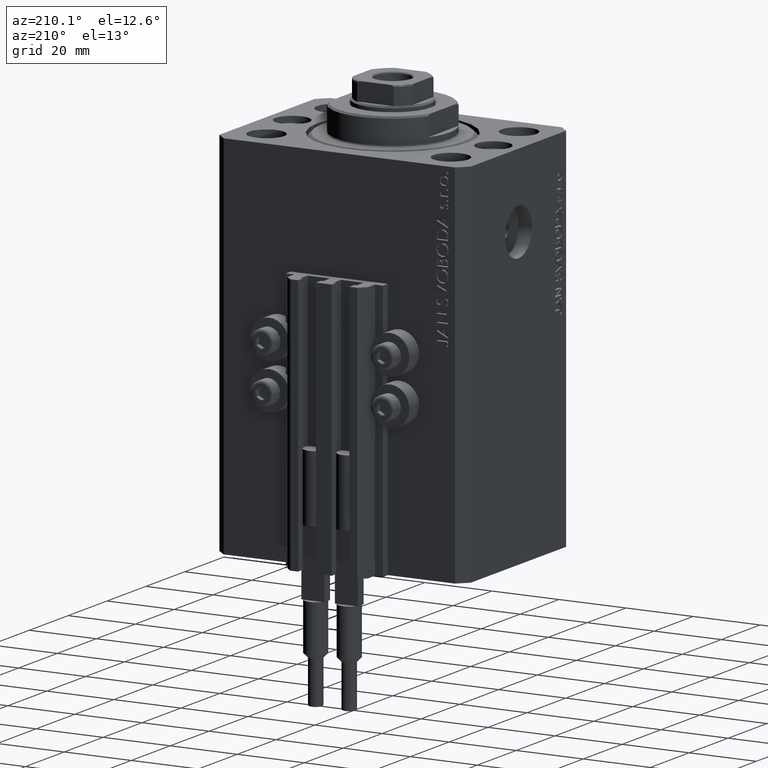
[diagram: clean part render]
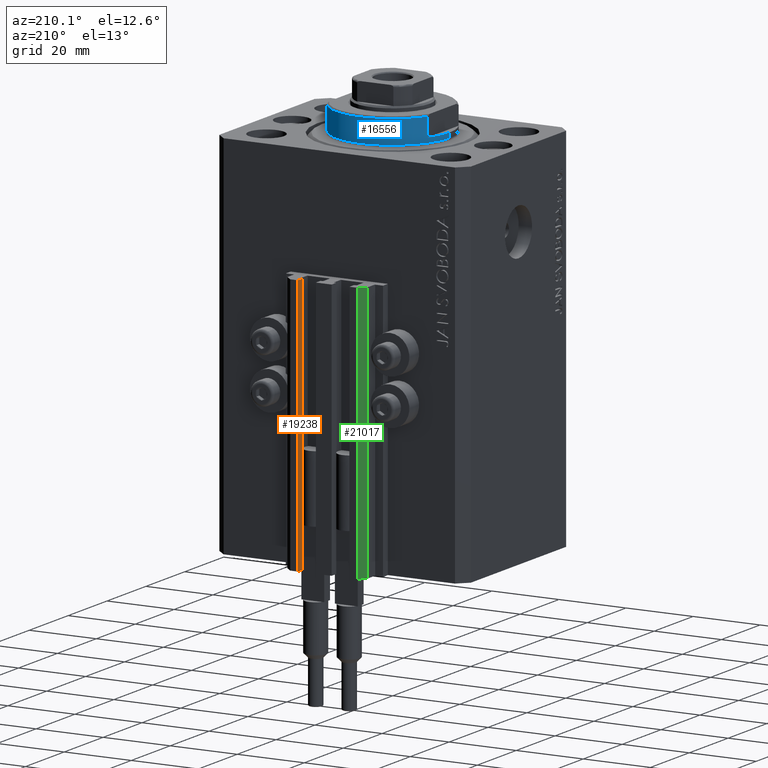
[diagram: same view with three faces highlighted in distinct colors, each labeled with its STEP entity id]
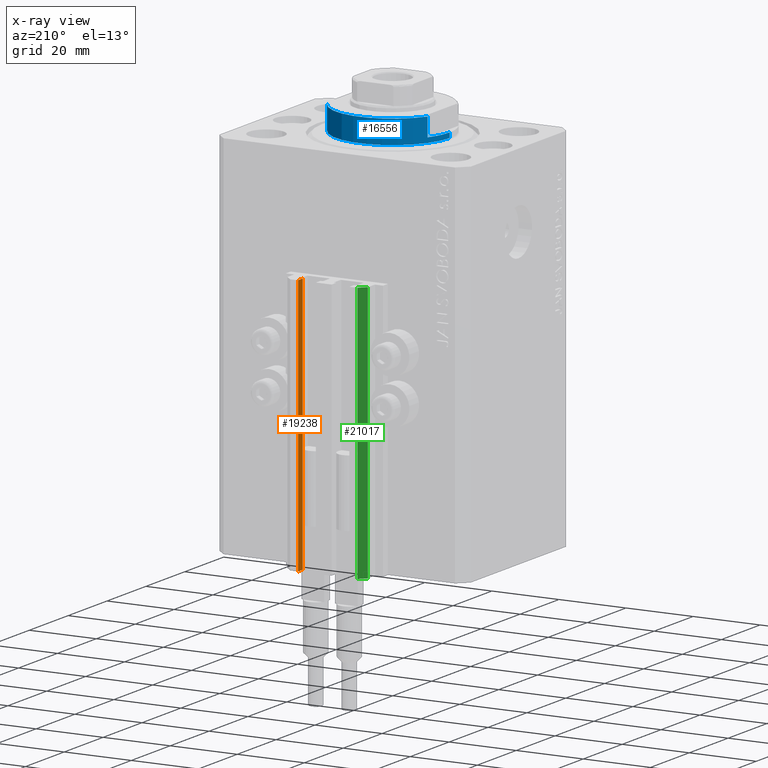
[diagram: x-ray of the same camera — body ghosted, the three highlighted faces saturated]
A machine part, auxiliary view with three faces highlighted in distinct colors.
The next image is the same camera in x-ray (body ghosted, the three faces saturated) — at least one of them is partly hidden behind the body in this view.
Their STEP definitions:

[orange] entity #19238 — the highlighted planar face has unit normal (-1, 0, 0).
#2348 = CARTESIAN_POINT ( 'NONE',  ( 7.649999999999998579, 35.50000000000001421, -110.0000000000000000 ) ) ;
#6105 = CARTESIAN_POINT ( 'NONE',  ( 7.649999999999998579, 35.50000000000001421, -33.00000000000000000 ) ) ;
#7947 = LINE ( 'NONE', #23481, #13675 ) ;
#9751 = LINE ( 'NONE', #6105, #40378 ) ;
#13128 = PLANE ( 'NONE',  #30612 ) ;
#13675 = VECTOR ( 'NONE', #34404, 1000.000000000000000 ) ;
#15602 = VERTEX_POINT ( 'NONE', #25102 ) ;
#15692 = LINE ( 'NONE', #20475, #36172 ) ;
#19238 = ADVANCED_FACE ( 'NONE', ( #27711 ), #13128, .T. ) ;
#20475 = CARTESIAN_POINT ( 'NONE',  ( 7.649999999999998579, 33.10000000000001563, -110.0000000000000000 ) ) ;
#20882 = CARTESIAN_POINT ( 'NONE',  ( 7.649999999999998579, 35.50000000000001421, -110.0000000000000000 ) ) ;
#20903 = DIRECTION ( 'NONE',  ( 0.000000000000000000, -1.000000000000000000, 0.000000000000000000 ) ) ;
#22951 = EDGE_LOOP ( 'NONE', ( #30989, #25717, #36698, #35018 ) ) ;
#23481 = CARTESIAN_POINT ( 'NONE',  ( 7.649999999999998579, 35.50000000000001421, -110.0000000000000000 ) ) ;
#23505 = VERTEX_POINT ( 'NONE', #36165 ) ;
#25102 = CARTESIAN_POINT ( 'NONE',  ( 7.649999999999998579, 33.10000000000001563, -110.0000000000000000 ) ) ;
#25717 = ORIENTED_EDGE ( 'NONE', *, *, #29306, .F. ) ;
#27711 = FACE_OUTER_BOUND ( 'NONE', #22951, .T. ) ;
#27949 = DIRECTION ( 'NONE',  ( 0.000000000000000000, 0.000000000000000000, 1.000000000000000000 ) ) ;
#28279 = EDGE_CURVE ( 'NONE', #15602, #23505, #15692, .T. ) ;
#28911 = VERTEX_POINT ( 'NONE', #30347 ) ;
#29306 = EDGE_CURVE ( 'NONE', #28911, #29903, #7947, .T. ) ;
#29903 = VERTEX_POINT ( 'NONE', #32361 ) ;
#30347 = CARTESIAN_POINT ( 'NONE',  ( 7.649999999999998579, 35.50000000000001421, -110.0000000000000000 ) ) ;
#30520 = DIRECTION ( 'NONE',  ( 0.000000000000000000, 0.000000000000000000, 1.000000000000000000 ) ) ;
#30612 = AXIS2_PLACEMENT_3D ( 'NONE', #20882, #46668, #27949 ) ;
#30989 = ORIENTED_EDGE ( 'NONE', *, *, #35877, .F. ) ;
#32361 = CARTESIAN_POINT ( 'NONE',  ( 7.649999999999998579, 35.50000000000001421, -33.00000000000000000 ) ) ;
#34404 = DIRECTION ( 'NONE',  ( 0.000000000000000000, 0.000000000000000000, 1.000000000000000000 ) ) ;
#35018 = ORIENTED_EDGE ( 'NONE', *, *, #28279, .T. ) ;
#35877 = EDGE_CURVE ( 'NONE', #29903, #23505, #9751, .T. ) ;
#36165 = CARTESIAN_POINT ( 'NONE',  ( 7.649999999999998579, 33.10000000000001563, -33.00000000000000000 ) ) ;
#36172 = VECTOR ( 'NONE', #30520, 1000.000000000000000 ) ;
#36464 = VECTOR ( 'NONE', #39051, 1000.000000000000000 ) ;
#36698 = ORIENTED_EDGE ( 'NONE', *, *, #41792, .T. ) ;
#39051 = DIRECTION ( 'NONE',  ( 0.000000000000000000, -1.000000000000000000, 0.000000000000000000 ) ) ;
#40378 = VECTOR ( 'NONE', #20903, 1000.000000000000000 ) ;
#41792 = EDGE_CURVE ( 'NONE', #28911, #15602, #46581, .T. ) ;
#46581 = LINE ( 'NONE', #2348, #36464 ) ;
#46668 = DIRECTION ( 'NONE',  ( -1.000000000000000000, 0.000000000000000000, 0.000000000000000000 ) ) ;

[blue] entity #16556 — the highlighted cylindrical surface (partial cylindrical patch) has radius 17 mm, axis along (0, 0, -1).
#666 = CARTESIAN_POINT ( 'NONE',  ( -15.00000000000000000, 8.000000000000001776, -8.000000000000000000 ) ) ;
#1464 = DIRECTION ( 'NONE',  ( -1.000000000000000000, 0.000000000000000000, 0.000000000000000000 ) ) ;
#1803 = DIRECTION ( 'NONE',  ( 1.000000000000000000, 0.000000000000000000, 0.000000000000000000 ) ) ;
#1894 = DIRECTION ( 'NONE',  ( 0.000000000000000000, 0.000000000000000000, 1.000000000000000000 ) ) ;
#2034 = CARTESIAN_POINT ( 'NONE',  ( 15.00000000000000000, 8.000000000000001776, -7.500000000000013323 ) ) ;
#2464 = VECTOR ( 'NONE', #35739, 1000.000000000000000 ) ;
#2940 = CARTESIAN_POINT ( 'NONE',  ( 0.000000000000000000, 0.000000000000000000, -2.000000000000000000 ) ) ;
#3598 = EDGE_LOOP ( 'NONE', ( #36890, #40107, #42874, #8221, #27456, #27679, #10755, #20607 ) ) ;
#3600 = EDGE_CURVE ( 'NONE', #7736, #33753, #47177, .T. ) ;
#4071 = LINE ( 'NONE', #666, #12060 ) ;
#4100 = EDGE_CURVE ( 'NONE', #34644, #13443, #37922, .T. ) ;
#4955 = VERTEX_POINT ( 'NONE', #22553 ) ;
#5535 = CARTESIAN_POINT ( 'NONE',  ( 17.00000000000000000, 0.000000000000000000, -2.000000000000000000 ) ) ;
#5673 = CARTESIAN_POINT ( 'NONE',  ( 15.00000000000000000, 8.000000000000001776, -8.000000000000000000 ) ) ;
#6489 = DIRECTION ( 'NONE',  ( -1.000000000000000000, 0.000000000000000000, 0.000000000000000000 ) ) ;
#7736 = VERTEX_POINT ( 'NONE', #46964 ) ;
#8026 = CIRCLE ( 'NONE', #46807, 17.00000000000000000 ) ;
#8221 = ORIENTED_EDGE ( 'NONE', *, *, #17845, .F. ) ;
#9661 = CARTESIAN_POINT ( 'NONE',  ( 0.000000000000000000, 0.000000000000000000, -7.500000000000013323 ) ) ;
#10223 = VERTEX_POINT ( 'NONE', #20885 ) ;
#10472 = DIRECTION ( 'NONE',  ( 0.000000000000000000, 0.000000000000000000, -1.000000000000000000 ) ) ;
#10755 = ORIENTED_EDGE ( 'NONE', *, *, #4100, .T. ) ;
#11037 = CIRCLE ( 'NONE', #45979, 17.00000000000000000 ) ;
#12060 = VECTOR ( 'NONE', #34405, 1000.000000000000000 ) ;
#12823 = EDGE_CURVE ( 'NONE', #7736, #14453, #16416, .T. ) ;
#13443 = VERTEX_POINT ( 'NONE', #16295 ) ;
#13954 = EDGE_CURVE ( 'NONE', #14453, #10223, #11037, .T. ) ;
#14453 = VERTEX_POINT ( 'NONE', #31718 ) ;
#16295 = CARTESIAN_POINT ( 'NONE',  ( -15.00000000000000000, 8.000000000000001776, -7.500000000000013323 ) ) ;
#16416 = LINE ( 'NONE', #38533, #36628 ) ;
#16556 = ADVANCED_FACE ( 'NONE', ( #36814 ), #44113, .T. ) ;
#16688 = EDGE_CURVE ( 'NONE', #4955, #45306, #8026, .T. ) ;
#16754 = CARTESIAN_POINT ( 'NONE',  ( -14.99999999999999645, 8.000000000000003553, -2.000000000000000000 ) ) ;
#17845 = EDGE_CURVE ( 'NONE', #45306, #10223, #23146, .T. ) ;
#19768 = DIRECTION ( 'NONE',  ( -0.000000000000000000, -0.000000000000000000, -1.000000000000000000 ) ) ;
#20607 = ORIENTED_EDGE ( 'NONE', *, *, #24648, .T. ) ;
#20885 = CARTESIAN_POINT ( 'NONE',  ( 17.00000000000000000, 0.000000000000000000, -0.5000000000000004441 ) ) ;
#22400 = AXIS2_PLACEMENT_3D ( 'NONE', #9661, #1894, #6489 ) ;
#22553 = CARTESIAN_POINT ( 'NONE',  ( 14.99999999999999645, 8.000000000000003553, -2.000000000000000000 ) ) ;
#22856 = DIRECTION ( 'NONE',  ( 0.000000000000000000, 0.000000000000000000, -1.000000000000000000 ) ) ;
#23146 = LINE ( 'NONE', #37974, #40529 ) ;
#23811 = CARTESIAN_POINT ( 'NONE',  ( 0.000000000000000000, 0.000000000000000000, -2.000000000000000000 ) ) ;
#24648 = EDGE_CURVE ( 'NONE', #13443, #33753, #4071, .T. ) ;
#27421 = AXIS2_PLACEMENT_3D ( 'NONE', #37788, #33656, #48007 ) ;
#27456 = ORIENTED_EDGE ( 'NONE', *, *, #16688, .F. ) ;
#27679 = ORIENTED_EDGE ( 'NONE', *, *, #38804, .F. ) ;
#29655 = DIRECTION ( 'NONE',  ( -1.000000000000000000, 0.000000000000000000, 0.000000000000000000 ) ) ;
#30991 = DIRECTION ( 'NONE',  ( -0.000000000000000000, -0.000000000000000000, 1.000000000000000000 ) ) ;
#31718 = CARTESIAN_POINT ( 'NONE',  ( -17.00000000000000000, 2.081899558550500280E-15, -0.5000000000000004441 ) ) ;
#33656 = DIRECTION ( 'NONE',  ( -0.000000000000000000, -0.000000000000000000, 1.000000000000000000 ) ) ;
#33753 = VERTEX_POINT ( 'NONE', #16754 ) ;
#34405 = DIRECTION ( 'NONE',  ( -0.000000000000000000, -0.000000000000000000, 1.000000000000000000 ) ) ;
#34553 = DIRECTION ( 'NONE',  ( -0.000000000000000000, -0.000000000000000000, 1.000000000000000000 ) ) ;
#34644 = VERTEX_POINT ( 'NONE', #2034 ) ;
#35059 = CARTESIAN_POINT ( 'NONE',  ( 0.000000000000000000, 0.000000000000000000, -0.5000000000000004441 ) ) ;
#35739 = DIRECTION ( 'NONE',  ( -0.000000000000000000, -0.000000000000000000, 1.000000000000000000 ) ) ;
#36628 = VECTOR ( 'NONE', #30991, 1000.000000000000000 ) ;
#36814 = FACE_OUTER_BOUND ( 'NONE', #3598, .T. ) ;
#36890 = ORIENTED_EDGE ( 'NONE', *, *, #3600, .F. ) ;
#37788 = CARTESIAN_POINT ( 'NONE',  ( 0.000000000000000000, 0.000000000000000000, -8.000000000000000000 ) ) ;
#37922 = CIRCLE ( 'NONE', #22400, 17.00000000000000000 ) ;
#37974 = CARTESIAN_POINT ( 'NONE',  ( 17.00000000000000000, 0.000000000000000000, -8.000000000000000000 ) ) ;
#38533 = CARTESIAN_POINT ( 'NONE',  ( -17.00000000000000000, 2.081899558550500280E-15, -8.000000000000000000 ) ) ;
#38804 = EDGE_CURVE ( 'NONE', #34644, #4955, #42592, .T. ) ;
#40107 = ORIENTED_EDGE ( 'NONE', *, *, #12823, .T. ) ;
#40529 = VECTOR ( 'NONE', #34553, 1000.000000000000000 ) ;
#42592 = LINE ( 'NONE', #5673, #2464 ) ;
#42874 = ORIENTED_EDGE ( 'NONE', *, *, #13954, .T. ) ;
#44113 = CYLINDRICAL_SURFACE ( 'NONE', #27421, 17.00000000000000000 ) ;
#44861 = AXIS2_PLACEMENT_3D ( 'NONE', #23811, #22856, #1464 ) ;
#45306 = VERTEX_POINT ( 'NONE', #5535 ) ;
#45979 = AXIS2_PLACEMENT_3D ( 'NONE', #35059, #19768, #1803 ) ;
#46807 = AXIS2_PLACEMENT_3D ( 'NONE', #2940, #10472, #29655 ) ;
#46964 = CARTESIAN_POINT ( 'NONE',  ( -17.00000000000000000, 2.081899558550500280E-15, -2.000000000000000000 ) ) ;
#47177 = CIRCLE ( 'NONE', #44861, 17.00000000000000000 ) ;
#48007 = DIRECTION ( 'NONE',  ( 1.000000000000000000, 0.000000000000000000, 0.000000000000000000 ) ) ;

[green] entity #21017 — the highlighted planar face has unit normal (-0.7071, 0.7071, 0).
#347 = DIRECTION ( 'NONE',  ( 0.000000000000000000, 0.000000000000000000, 1.000000000000000000 ) ) ;
#1667 = LINE ( 'NONE', #42486, #31633 ) ;
#2344 = EDGE_CURVE ( 'NONE', #40656, #27639, #1667, .T. ) ;
#2504 = DIRECTION ( 'NONE',  ( -0.7071067811865490160, 0.7071067811865461294, 0.000000000000000000 ) ) ;
#6027 = DIRECTION ( 'NONE',  ( -0.7071067811865460184, -0.7071067811865490160, 0.000000000000000000 ) ) ;
#7185 = DIRECTION ( 'NONE',  ( 0.000000000000000000, 0.000000000000000000, 1.000000000000000000 ) ) ;
#7420 = EDGE_LOOP ( 'NONE', ( #41676, #18335, #19494, #45981 ) ) ;
#11427 = CARTESIAN_POINT ( 'NONE',  ( -10.00000000000000000, 35.50000000000000000, -33.00000000000000000 ) ) ;
#13566 = VERTEX_POINT ( 'NONE', #21134 ) ;
#17063 = CARTESIAN_POINT ( 'NONE',  ( -10.00000000000000000, 35.50000000000000000, -110.0000000000000000 ) ) ;
#17193 = EDGE_CURVE ( 'NONE', #45858, #13566, #26969, .T. ) ;
#17457 = CARTESIAN_POINT ( 'NONE',  ( -12.00000000000000000, 33.49999999999998579, -110.0000000000000000 ) ) ;
#18094 = LINE ( 'NONE', #36306, #40688 ) ;
#18335 = ORIENTED_EDGE ( 'NONE', *, *, #47545, .F. ) ;
#18541 = LINE ( 'NONE', #44558, #18676 ) ;
#18676 = VECTOR ( 'NONE', #347, 1000.000000000000000 ) ;
#18797 = VECTOR ( 'NONE', #26500, 1000.000000000000227 ) ;
#19494 = ORIENTED_EDGE ( 'NONE', *, *, #2344, .T. ) ;
#21017 = ADVANCED_FACE ( 'NONE', ( #24600 ), #35754, .T. ) ;
#21134 = CARTESIAN_POINT ( 'NONE',  ( -12.00000000000000000, 33.49999999999998579, -33.00000000000000000 ) ) ;
#24600 = FACE_OUTER_BOUND ( 'NONE', #7420, .T. ) ;
#26024 = AXIS2_PLACEMENT_3D ( 'NONE', #17063, #2504, #47630 ) ;
#26500 = DIRECTION ( 'NONE',  ( -0.7071067811865460184, -0.7071067811865490160, 0.000000000000000000 ) ) ;
#26969 = LINE ( 'NONE', #11427, #18797 ) ;
#27639 = VERTEX_POINT ( 'NONE', #17457 ) ;
#29660 = CARTESIAN_POINT ( 'NONE',  ( -10.00000000000000000, 35.50000000000000000, -33.00000000000000000 ) ) ;
#30311 = EDGE_CURVE ( 'NONE', #27639, #13566, #18094, .T. ) ;
#31633 = VECTOR ( 'NONE', #6027, 1000.000000000000227 ) ;
#34001 = CARTESIAN_POINT ( 'NONE',  ( -10.00000000000000000, 35.50000000000000000, -110.0000000000000000 ) ) ;
#35754 = PLANE ( 'NONE',  #26024 ) ;
#36306 = CARTESIAN_POINT ( 'NONE',  ( -12.00000000000000000, 33.49999999999998579, -110.0000000000000000 ) ) ;
#40656 = VERTEX_POINT ( 'NONE', #34001 ) ;
#40688 = VECTOR ( 'NONE', #7185, 1000.000000000000000 ) ;
#41676 = ORIENTED_EDGE ( 'NONE', *, *, #17193, .F. ) ;
#42486 = CARTESIAN_POINT ( 'NONE',  ( -10.00000000000000000, 35.50000000000000000, -110.0000000000000000 ) ) ;
#44558 = CARTESIAN_POINT ( 'NONE',  ( -10.00000000000000000, 35.50000000000000000, -110.0000000000000000 ) ) ;
#45858 = VERTEX_POINT ( 'NONE', #29660 ) ;
#45981 = ORIENTED_EDGE ( 'NONE', *, *, #30311, .T. ) ;
#47545 = EDGE_CURVE ( 'NONE', #40656, #45858, #18541, .T. ) ;
#47630 = DIRECTION ( 'NONE',  ( -0.7071067811865460184, -0.7071067811865489050, 0.000000000000000000 ) ) ;